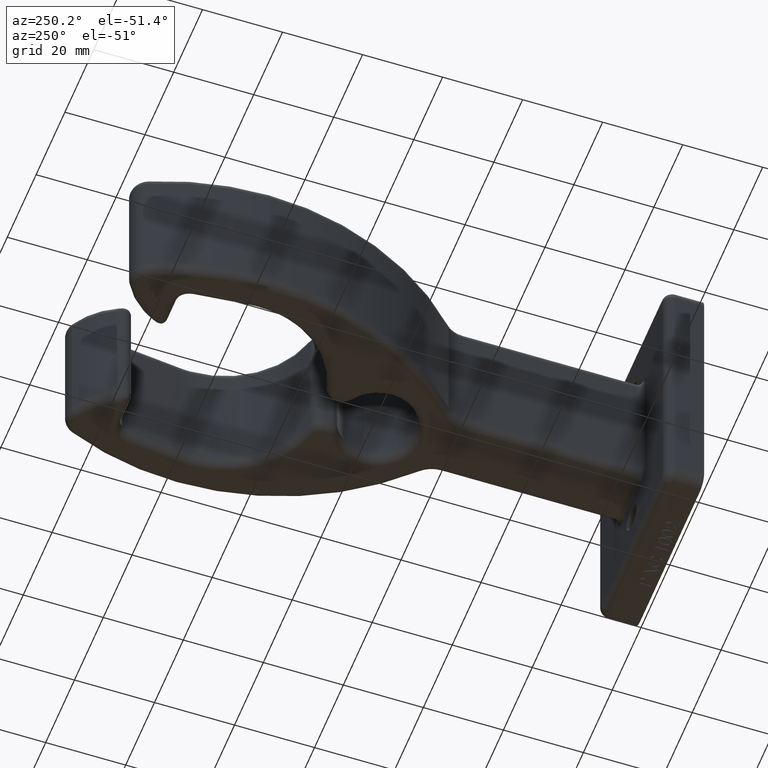
[diagram: clean part render]
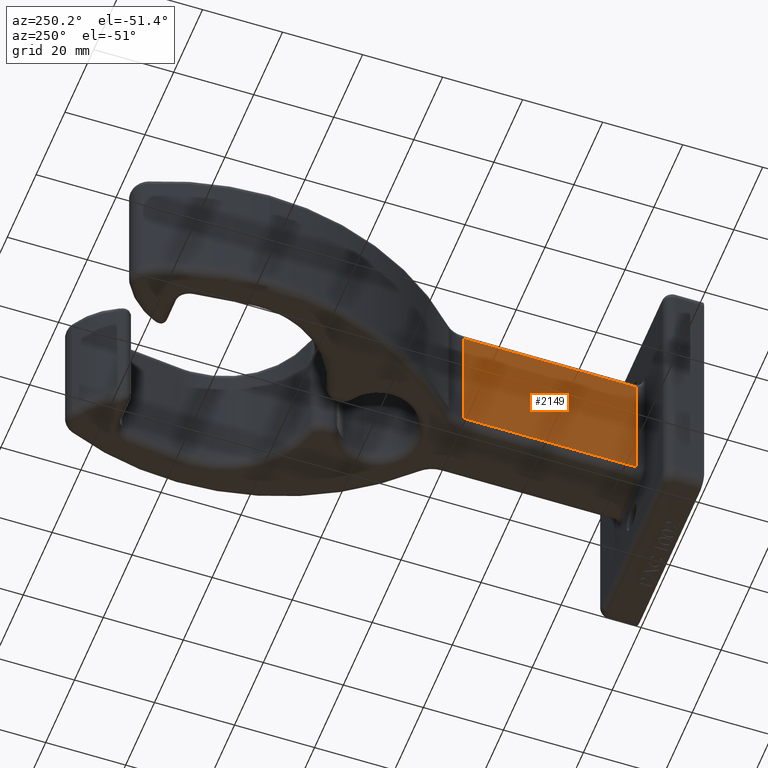
[diagram: same view with one face highlighted and labeled with its STEP entity id]
A machine part, auxiliary view. The second image highlights one B-rep face of the part: STEP entity #2149.
In plain terms, the highlighted planar face has unit normal (1, 0, -0).
Its self-contained STEP definition (entity closure, byte-faithful):
#44 = CARTESIAN_POINT ( 'NONE',  ( -0.3125000000000011100, 2.250000000000000400, 0.6875000000000000000 ) ) ;
#1058 = VERTEX_POINT ( 'NONE', #2051 ) ;
#1144 = DIRECTION ( 'NONE',  ( -7.284927983104699900E-016, 1.000000000000000000, 0.0000000000000000000 ) ) ;
#1773 = VECTOR ( 'NONE', #9987, 39.37007874015748100 ) ;
#2051 = CARTESIAN_POINT ( 'NONE',  ( -0.3125000000000010500, 2.140823379455575100, -0.5937499999999998900 ) ) ;
#2149 = ADVANCED_FACE ( 'NONE', ( #8918 ), #6613, .F. ) ;
#2947 = VECTOR ( 'NONE', #12693, 39.37007874015748100 ) ;
#2982 = DIRECTION ( 'NONE',  ( 7.284927983104699900E-016, -1.000000000000000000, 0.0000000000000000000 ) ) ;
#3393 = CARTESIAN_POINT ( 'NONE',  ( -0.3124999999999998300, 0.4375000000000000600, 0.5937500000000000000 ) ) ;
#4853 = EDGE_CURVE ( 'NONE', #1058, #12639, #14022, .T. ) ;
#5875 = LINE ( 'NONE', #6085, #2947 ) ;
#6029 = ORIENTED_EDGE ( 'NONE', *, *, #8618, .T. ) ;
#6061 = CARTESIAN_POINT ( 'NONE',  ( -0.3124999999999998300, 0.4375000000000001700, 0.5937500000000000000 ) ) ;
#6085 = CARTESIAN_POINT ( 'NONE',  ( -0.3125000000000010500, 2.140823379455575100, 0.5937500000000000000 ) ) ;
#6293 = ORIENTED_EDGE ( 'NONE', *, *, #4853, .T. ) ;
#6340 = ORIENTED_EDGE ( 'NONE', *, *, #8440, .T. ) ;
#6613 = PLANE ( 'NONE',  #11885 ) ;
#7388 = LINE ( 'NONE', #13192, #13646 ) ;
#7486 = VERTEX_POINT ( 'NONE', #6061 ) ;
#7708 = DIRECTION ( 'NONE',  ( 1.000000000000000000, 7.284927983104699900E-016, -0.0000000000000000000 ) ) ;
#7782 = EDGE_LOOP ( 'NONE', ( #6293, #6340, #6029, #12029 ) ) ;
#8440 = EDGE_CURVE ( 'NONE', #12639, #7486, #13104, .T. ) ;
#8618 = EDGE_CURVE ( 'NONE', #7486, #10588, #5875, .T. ) ;
#8816 = EDGE_CURVE ( 'NONE', #10588, #1058, #7388, .T. ) ;
#8918 = FACE_OUTER_BOUND ( 'NONE', #7782, .T. ) ;
#9987 = DIRECTION ( 'NONE',  ( -0.0000000000000000000, -0.0000000000000000000, 1.000000000000000000 ) ) ;
#10588 = VERTEX_POINT ( 'NONE', #13901 ) ;
#10905 = CARTESIAN_POINT ( 'NONE',  ( -0.3125000000000011100, 2.250000000000000400, -0.5937499999999998900 ) ) ;
#11036 = CARTESIAN_POINT ( 'NONE',  ( -0.3124999999999998300, 0.4374999999999998900, -0.5937499999999998900 ) ) ;
#11454 = VECTOR ( 'NONE', #2982, 39.37007874015748100 ) ;
#11885 = AXIS2_PLACEMENT_3D ( 'NONE', #44, #7708, #1144 ) ;
#12029 = ORIENTED_EDGE ( 'NONE', *, *, #8816, .T. ) ;
#12639 = VERTEX_POINT ( 'NONE', #11036 ) ;
#12693 = DIRECTION ( 'NONE',  ( -7.284927983104699900E-016, 1.000000000000000000, -0.0000000000000000000 ) ) ;
#13104 = LINE ( 'NONE', #3393, #1773 ) ;
#13192 = CARTESIAN_POINT ( 'NONE',  ( -0.3125000000000010500, 2.140823379455575100, -0.6875000000000000000 ) ) ;
#13646 = VECTOR ( 'NONE', #14158, 39.37007874015748100 ) ;
#13901 = CARTESIAN_POINT ( 'NONE',  ( -0.3125000000000010500, 2.140823379455575100, 0.5937499999999998900 ) ) ;
#14022 = LINE ( 'NONE', #10905, #11454 ) ;
#14158 = DIRECTION ( 'NONE',  ( -0.0000000000000000000, -0.0000000000000000000, -1.000000000000000000 ) ) ;